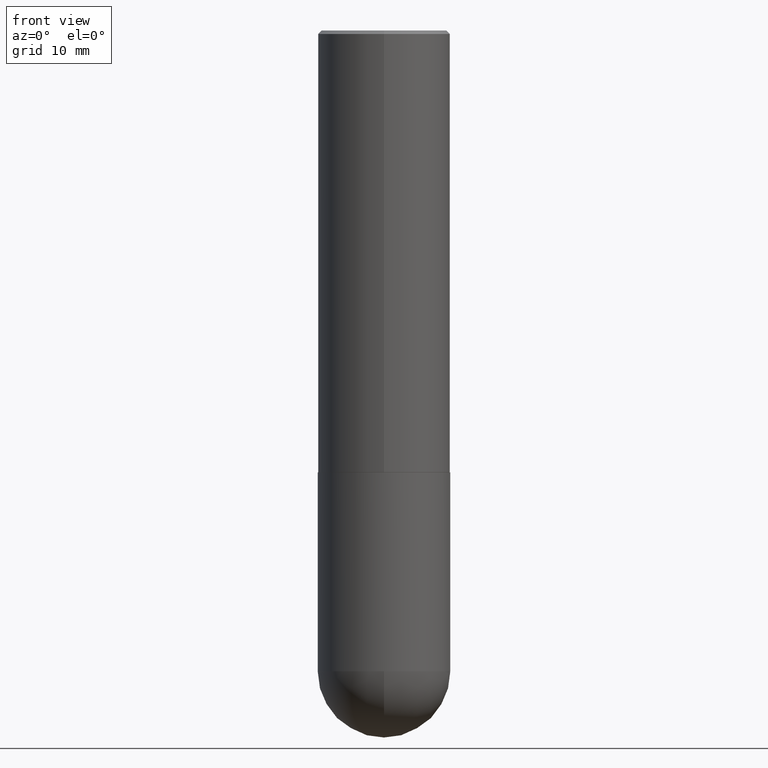
[diagram: clean part render]
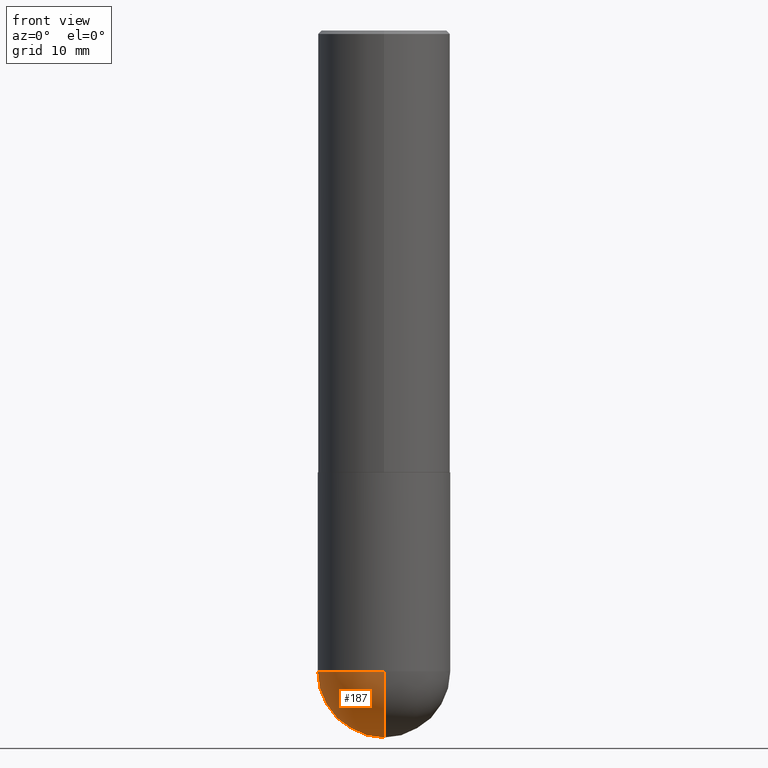
[diagram: same view with one face highlighted and labeled with its STEP entity id]
A machine part, front view. The second image highlights one B-rep face of the part: STEP entity #187.
In plain terms, the highlighted spherical surface has radius 9.525 mm.
Its self-contained STEP definition (entity closure, byte-faithful):
#2 = EDGE_CURVE ( 'NONE', #301, #194, #386, .T. ) ;
#13 = AXIS2_PLACEMENT_3D ( 'NONE', #245, #341, #19 ) ;
#15 = ORIENTED_EDGE ( 'NONE', *, *, #27, .T. ) ;
#17 = AXIS2_PLACEMENT_3D ( 'NONE', #172, #281, #31 ) ;
#19 = DIRECTION ( 'NONE',  ( 1.000000000000000000, -6.982962677686265922E-15, 0.000000000000000000 ) ) ;
#27 = EDGE_CURVE ( 'NONE', #111, #194, #61, .T. ) ;
#29 = CARTESIAN_POINT ( 'NONE',  ( 2.618611004132438763E-15, 0.3749999999999873990, -3.625000000000000888 ) ) ;
#31 = DIRECTION ( 'NONE',  ( 1.000000000000000000, -6.982962677686265922E-15, 0.000000000000000000 ) ) ;
#33 = FACE_OUTER_BOUND ( 'NONE', #314, .T. ) ;
#43 = ORIENTED_EDGE ( 'NONE', *, *, #356, .F. ) ;
#60 = CARTESIAN_POINT ( 'NONE',  ( -2.664535259100290106E-15, -0.3750000000000131006, -3.624999999999998668 ) ) ;
#61 = CIRCLE ( 'NONE', #198, 0.3750000000000003886 ) ;
#64 = CARTESIAN_POINT ( 'NONE',  ( 9.466789814748773816E-29, -1.441714559602862136E-14, -4.000000000000000000 ) ) ;
#65 = DIRECTION ( 'NONE',  ( 6.982962677686265922E-15, 1.000000000000000000, 0.000000000000000000 ) ) ;
#83 = DIRECTION ( 'NONE',  ( -7.105427357600999492E-15, -1.000000000000000000, 0.000000000000000000 ) ) ;
#91 = AXIS2_PLACEMENT_3D ( 'NONE', #92, #382, #65 ) ;
#92 = CARTESIAN_POINT ( 'NONE',  ( 8.533704644507233916E-29, -1.313080222144645289E-14, -3.624999999999999556 ) ) ;
#111 = VERTEX_POINT ( 'NONE', #64 ) ;
#114 = ORIENTED_EDGE ( 'NONE', *, *, #161, .F. ) ;
#126 = DIRECTION ( 'NONE',  ( -1.000000000000000000, 6.982962677686266711E-15, -4.883557194083113462E-29 ) ) ;
#156 = SPHERICAL_SURFACE ( 'NONE', #394, 0.3750000000000003886 ) ;
#161 = EDGE_CURVE ( 'NONE', #111, #307, #218, .T. ) ;
#172 = CARTESIAN_POINT ( 'NONE',  ( 8.864824422421120163E-29, -1.265661985330640259E-14, -3.624999999999999556 ) ) ;
#177 = CARTESIAN_POINT ( 'NONE',  ( -0.3750000000000001110, -8.028126341106758858E-15, -3.624999999999999556 ) ) ;
#187 = ADVANCED_FACE ( 'NONE', ( #33 ), #156, .T. ) ;
#194 = VERTEX_POINT ( 'NONE', #60 ) ;
#198 = AXIS2_PLACEMENT_3D ( 'NONE', #214, #374, #83 ) ;
#214 = CARTESIAN_POINT ( 'NONE',  ( 8.533704644507233916E-29, -1.313080222144645289E-14, -3.624999999999999556 ) ) ;
#218 = CIRCLE ( 'NONE', #91, 0.3750000000000003886 ) ;
#229 = ORIENTED_EDGE ( 'NONE', *, *, #2, .F. ) ;
#245 = CARTESIAN_POINT ( 'NONE',  ( 8.864824422421120163E-29, -1.265661985330640259E-14, -3.624999999999999556 ) ) ;
#252 = DIRECTION ( 'NONE',  ( 6.982962677686266711E-15, 1.000000000000000000, -2.913971193241878005E-15 ) ) ;
#281 = DIRECTION ( 'NONE',  ( -2.445468806185136597E-29, 3.491481338843145583E-15, 1.000000000000000000 ) ) ;
#287 = CARTESIAN_POINT ( 'NONE',  ( 8.533704644507233916E-29, -1.313080222144645289E-14, -3.624999999999999556 ) ) ;
#301 = VERTEX_POINT ( 'NONE', #177 ) ;
#307 = VERTEX_POINT ( 'NONE', #29 ) ;
#314 = EDGE_LOOP ( 'NONE', ( #114, #15, #229, #43 ) ) ;
#330 = CIRCLE ( 'NONE', #17, 0.3750000000000001110 ) ;
#341 = DIRECTION ( 'NONE',  ( -2.445468806185136597E-29, 3.491481338843145583E-15, 1.000000000000000000 ) ) ;
#356 = EDGE_CURVE ( 'NONE', #307, #301, #330, .T. ) ;
#374 = DIRECTION ( 'NONE',  ( -1.000000000000000000, 7.105427357601001070E-15, -4.926315508542082329E-29 ) ) ;
#382 = DIRECTION ( 'NONE',  ( 1.000000000000000000, -6.982962677686265922E-15, 4.883557194083112340E-29 ) ) ;
#386 = CIRCLE ( 'NONE', #13, 0.3750000000000001110 ) ;
#394 = AXIS2_PLACEMENT_3D ( 'NONE', #287, #126, #252 ) ;